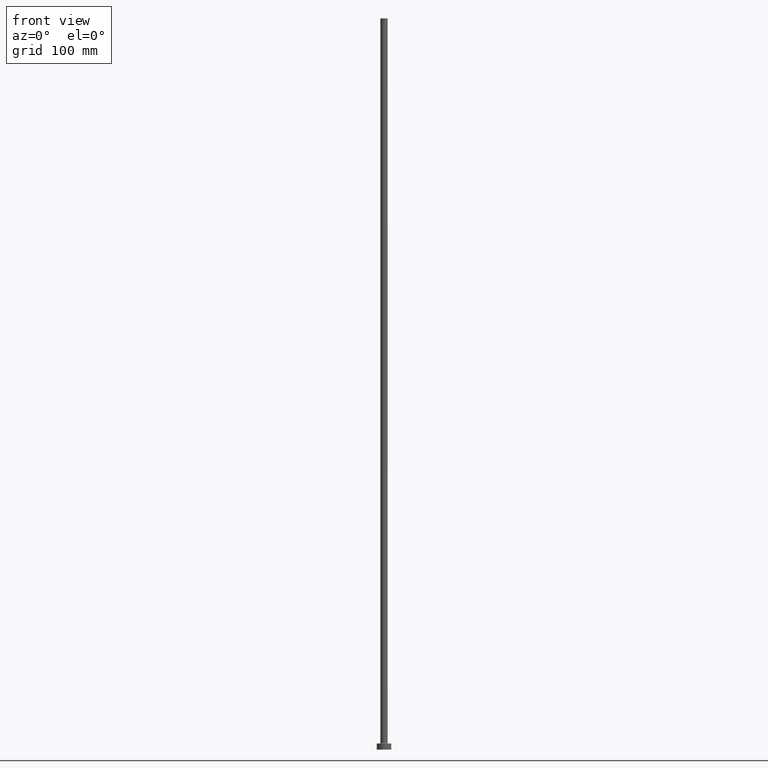
[diagram: clean part render]
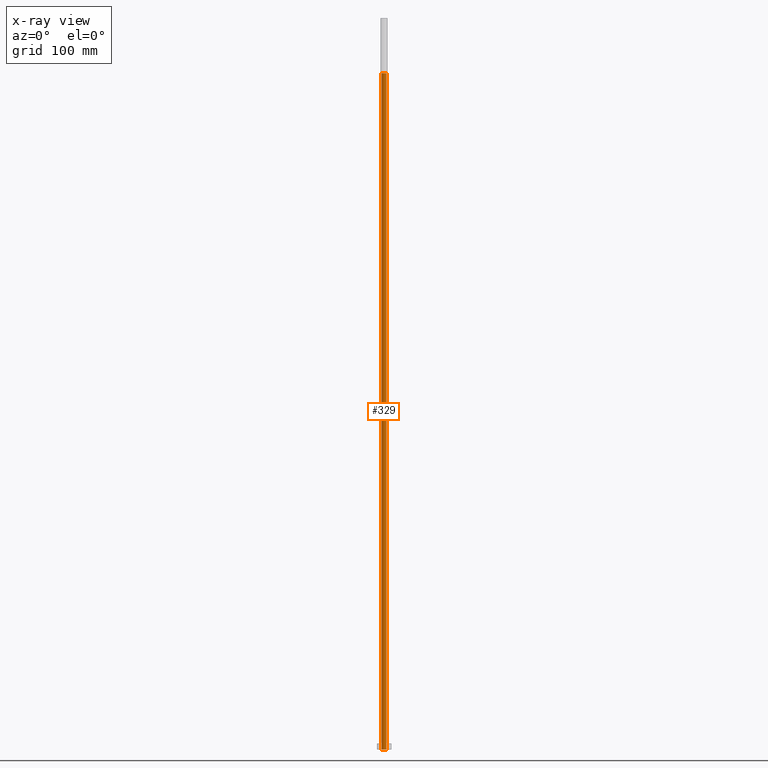
[diagram: x-ray — body ghosted, one internal face saturated and labeled with its STEP entity id]
A machine part, front view, then the same camera in x-ray: the body is ghosted and one INTERNAL B-rep face — a face not visible from any outside direction — is saturated and labeled: STEP entity #329.
In plain terms, the highlighted cylindrical surface (edge-blend (fillet) strip) has radius 1.9 mm, axis along (0, 0, -1).
Its self-contained STEP definition (entity closure, byte-faithful):
#13 = DIRECTION ( 'NONE',  ( -1.000000000000000000, 0.000000000000000000, 0.000000000000000000 ) ) ;
#26 = CARTESIAN_POINT ( 'NONE',  ( 1.899999999999999911, 2.326828918379971365E-16, 0.000000000000000000 ) ) ;
#30 = CARTESIAN_POINT ( 'NONE',  ( -1.899999999999999911, 0.000000000000000000, 554.9999999999998863 ) ) ;
#33 = LINE ( 'NONE', #367, #347 ) ;
#37 = DIRECTION ( 'NONE',  ( 0.000000000000000000, 0.000000000000000000, 1.000000000000000000 ) ) ;
#52 = EDGE_CURVE ( 'NONE', #90, #438, #33, .T. ) ;
#67 = AXIS2_PLACEMENT_3D ( 'NONE', #69, #37, #178 ) ;
#69 = CARTESIAN_POINT ( 'NONE',  ( 0.000000000000000000, 0.000000000000000000, 554.9999999999998863 ) ) ;
#76 = CARTESIAN_POINT ( 'NONE',  ( -1.899999999999999911, 0.000000000000000000, 0.000000000000000000 ) ) ;
#90 = VERTEX_POINT ( 'NONE', #30 ) ;
#92 = EDGE_CURVE ( 'NONE', #90, #258, #211, .T. ) ;
#115 = DIRECTION ( 'NONE',  ( -0.000000000000000000, -0.000000000000000000, -1.000000000000000000 ) ) ;
#121 = VERTEX_POINT ( 'NONE', #26 ) ;
#124 = AXIS2_PLACEMENT_3D ( 'NONE', #319, #401, #13 ) ;
#125 = VECTOR ( 'NONE', #175, 1000.000000000000000 ) ;
#133 = DIRECTION ( 'NONE',  ( 0.000000000000000000, 0.000000000000000000, -1.000000000000000000 ) ) ;
#138 = CARTESIAN_POINT ( 'NONE',  ( 1.899999999999999911, 2.326828918379971365E-16, 554.9999999999998863 ) ) ;
#154 = DIRECTION ( 'NONE',  ( 1.000000000000000000, 0.000000000000000000, 0.000000000000000000 ) ) ;
#161 = ORIENTED_EDGE ( 'NONE', *, *, #52, .F. ) ;
#169 = EDGE_LOOP ( 'NONE', ( #261, #444, #375, #161 ) ) ;
#175 = DIRECTION ( 'NONE',  ( 0.000000000000000000, 0.000000000000000000, -1.000000000000000000 ) ) ;
#178 = DIRECTION ( 'NONE',  ( 1.000000000000000000, 0.000000000000000000, 0.000000000000000000 ) ) ;
#204 = CARTESIAN_POINT ( 'NONE',  ( 1.899999999999999911, 2.326828918379971365E-16, 560.3740115370177364 ) ) ;
#211 = CIRCLE ( 'NONE', #67, 1.899999999999999911 ) ;
#227 = FACE_OUTER_BOUND ( 'NONE', #169, .T. ) ;
#258 = VERTEX_POINT ( 'NONE', #138 ) ;
#261 = ORIENTED_EDGE ( 'NONE', *, *, #92, .T. ) ;
#282 = CARTESIAN_POINT ( 'NONE',  ( 0.000000000000000000, 0.000000000000000000, 0.000000000000000000 ) ) ;
#286 = EDGE_CURVE ( 'NONE', #121, #438, #389, .T. ) ;
#317 = CYLINDRICAL_SURFACE ( 'NONE', #124, 1.899999999999999911 ) ;
#319 = CARTESIAN_POINT ( 'NONE',  ( 0.000000000000000000, 0.000000000000000000, 560.3740115370177364 ) ) ;
#329 = ADVANCED_FACE ( 'NONE', ( #227 ), #317, .F. ) ;
#347 = VECTOR ( 'NONE', #133, 1000.000000000000000 ) ;
#367 = CARTESIAN_POINT ( 'NONE',  ( -1.899999999999999911, 0.000000000000000000, 560.3740115370177364 ) ) ;
#374 = AXIS2_PLACEMENT_3D ( 'NONE', #282, #115, #154 ) ;
#375 = ORIENTED_EDGE ( 'NONE', *, *, #286, .T. ) ;
#377 = LINE ( 'NONE', #204, #125 ) ;
#389 = CIRCLE ( 'NONE', #374, 1.899999999999999911 ) ;
#391 = EDGE_CURVE ( 'NONE', #258, #121, #377, .T. ) ;
#401 = DIRECTION ( 'NONE',  ( 0.000000000000000000, 0.000000000000000000, -1.000000000000000000 ) ) ;
#438 = VERTEX_POINT ( 'NONE', #76 ) ;
#444 = ORIENTED_EDGE ( 'NONE', *, *, #391, .T. ) ;